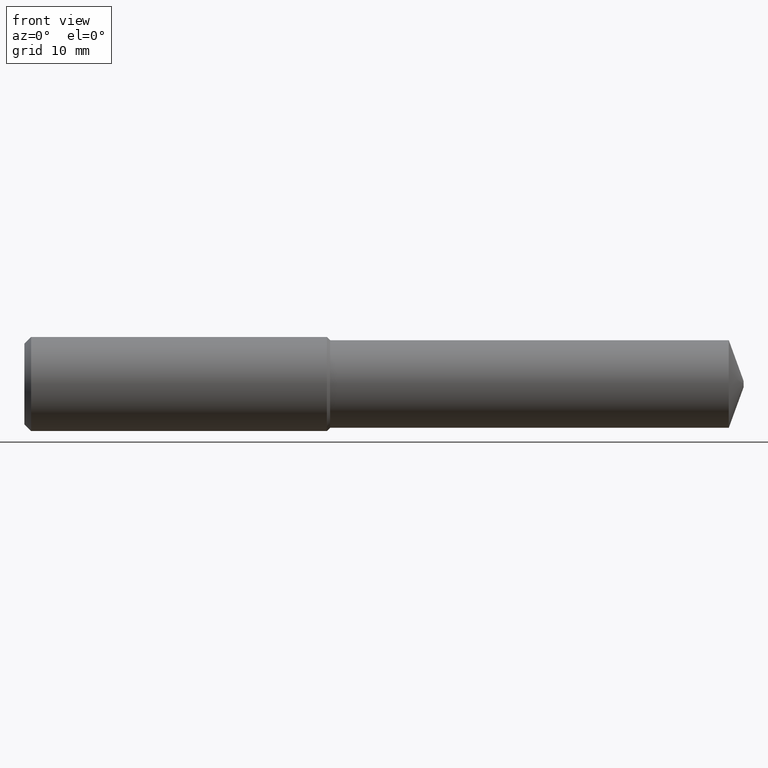
[diagram: clean part render]
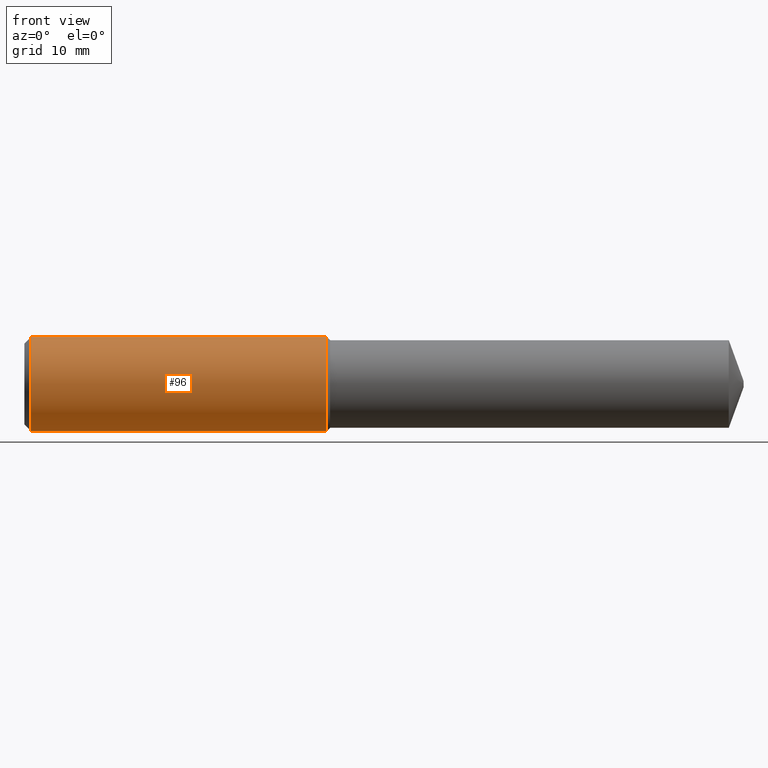
[diagram: same view with one face highlighted and labeled with its STEP entity id]
A machine part, front view. The second image highlights one B-rep face of the part: STEP entity #96.
In plain terms, the highlighted cylindrical surface (partial cylindrical patch) has radius 7 mm, axis along (1, -0, -0).
Its self-contained STEP definition (entity closure, byte-faithful):
#13 = CIRCLE ( 'NONE', #285, 0.2755905511811023723 ) ;
#19 = CARTESIAN_POINT ( 'NONE',  ( 1.771653543307086576, 0.000000000000000000, 0.2755905511811025943 ) ) ;
#34 = CARTESIAN_POINT ( 'NONE',  ( 0.03937007874015747977, 3.375010863791918991E-17, 0.2755905511811023723 ) ) ;
#53 = VERTEX_POINT ( 'NONE', #34 ) ;
#63 = LINE ( 'NONE', #237, #273 ) ;
#65 = DIRECTION ( 'NONE',  ( 1.000000000000000000, -0.000000000000000000, -0.000000000000000000 ) ) ;
#90 = DIRECTION ( 'NONE',  ( 1.000000000000000000, -0.000000000000000000, -0.000000000000000000 ) ) ;
#96 = ADVANCED_FACE ( 'NONE', ( #205 ), #261, .T. ) ;
#98 = EDGE_CURVE ( 'NONE', #260, #231, #63, .T. ) ;
#117 = DIRECTION ( 'NONE',  ( 1.000000000000000000, -0.000000000000000000, -0.000000000000000000 ) ) ;
#122 = DIRECTION ( 'NONE',  ( 0.000000000000000000, 0.000000000000000000, -1.000000000000000000 ) ) ;
#130 = DIRECTION ( 'NONE',  ( 1.000000000000000000, -0.000000000000000000, -0.000000000000000000 ) ) ;
#135 = EDGE_CURVE ( 'NONE', #289, #231, #303, .T. ) ;
#136 = AXIS2_PLACEMENT_3D ( 'NONE', #331, #65, #179 ) ;
#160 = CARTESIAN_POINT ( 'NONE',  ( -0.03808593750000075634, 3.375010863791919607E-17, 0.2755905511811024833 ) ) ;
#162 = EDGE_CURVE ( 'NONE', #53, #260, #13, .T. ) ;
#171 = ORIENTED_EDGE ( 'NONE', *, *, #135, .F. ) ;
#179 = DIRECTION ( 'NONE',  ( 0.000000000000000000, 0.000000000000000000, -1.000000000000000000 ) ) ;
#190 = CARTESIAN_POINT ( 'NONE',  ( 0.03937007874015747977, 0.000000000000000000, -0.2755905511811023723 ) ) ;
#205 = FACE_OUTER_BOUND ( 'NONE', #256, .T. ) ;
#211 = CARTESIAN_POINT ( 'NONE',  ( -0.03808593750000075634, 0.000000000000000000, 0.000000000000000000 ) ) ;
#231 = VERTEX_POINT ( 'NONE', #274 ) ;
#237 = CARTESIAN_POINT ( 'NONE',  ( -0.03808593750000075634, 0.000000000000000000, -0.2755905511811024833 ) ) ;
#256 = EDGE_LOOP ( 'NONE', ( #280, #378, #348, #171 ) ) ;
#260 = VERTEX_POINT ( 'NONE', #190 ) ;
#261 = CYLINDRICAL_SURFACE ( 'NONE', #265, 0.2755905511811024833 ) ;
#265 = AXIS2_PLACEMENT_3D ( 'NONE', #211, #299, #122 ) ;
#266 = LINE ( 'NONE', #160, #327 ) ;
#273 = VECTOR ( 'NONE', #117, 39.37007874015748143 ) ;
#274 = CARTESIAN_POINT ( 'NONE',  ( 1.771653543307086576, 3.375010863791920840E-17, -0.2755905511811025943 ) ) ;
#280 = ORIENTED_EDGE ( 'NONE', *, *, #334, .F. ) ;
#285 = AXIS2_PLACEMENT_3D ( 'NONE', #356, #90, #326 ) ;
#289 = VERTEX_POINT ( 'NONE', #19 ) ;
#299 = DIRECTION ( 'NONE',  ( 1.000000000000000000, -0.000000000000000000, -0.000000000000000000 ) ) ;
#303 = CIRCLE ( 'NONE', #136, 0.2755905511811025943 ) ;
#326 = DIRECTION ( 'NONE',  ( 0.000000000000000000, 0.000000000000000000, -1.000000000000000000 ) ) ;
#327 = VECTOR ( 'NONE', #130, 39.37007874015748143 ) ;
#331 = CARTESIAN_POINT ( 'NONE',  ( 1.771653543307086576, 0.000000000000000000, 0.000000000000000000 ) ) ;
#334 = EDGE_CURVE ( 'NONE', #53, #289, #266, .T. ) ;
#348 = ORIENTED_EDGE ( 'NONE', *, *, #98, .T. ) ;
#356 = CARTESIAN_POINT ( 'NONE',  ( 0.03937007874015747977, 0.000000000000000000, 0.000000000000000000 ) ) ;
#378 = ORIENTED_EDGE ( 'NONE', *, *, #162, .T. ) ;